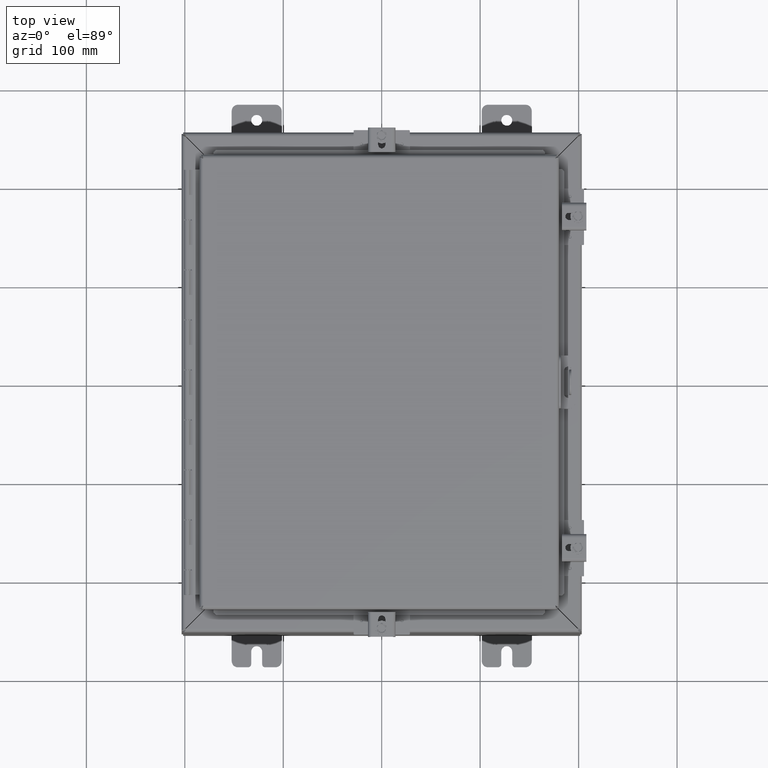
[diagram: clean part render]
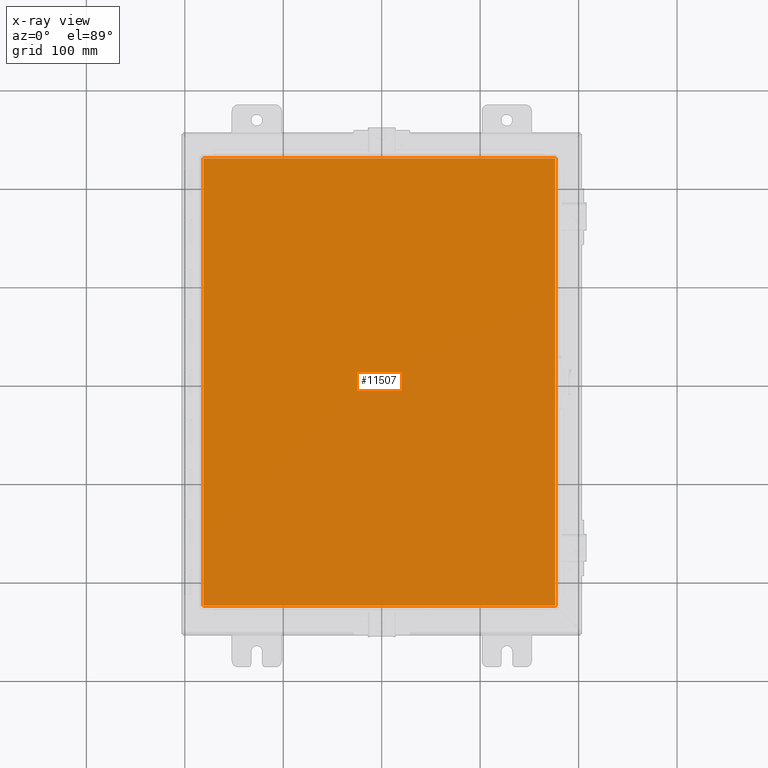
[diagram: x-ray — body ghosted, one internal face saturated and labeled with its STEP entity id]
A machine part, top view, then the same camera in x-ray: the body is ghosted and one INTERNAL B-rep face — a face not visible from any outside direction — is saturated and labeled: STEP entity #11507.
In plain terms, the highlighted planar face has unit normal (-0, -0, -1).
Its self-contained STEP definition (entity closure, byte-faithful):
#1282=PLANE('',#12228);
#1803=FACE_OUTER_BOUND('',#2477,.T.);
#2477=EDGE_LOOP('',(#9403,#9404,#9405,#9406));
#3302=LINE('',#19282,#4307);
#3308=LINE('',#19412,#4313);
#3312=LINE('',#19509,#4317);
#3326=LINE('',#19743,#4331);
#4307=VECTOR('',#14060,14.0695);
#4313=VECTOR('',#14070,17.882);
#4317=VECTOR('',#14082,14.0695);
#4331=VECTOR('',#14118,17.882);
#5637=VERTEX_POINT('',#19268);
#5638=VERTEX_POINT('',#19274);
#5644=VERTEX_POINT('',#19411);
#5648=VERTEX_POINT('',#19508);
#6966=EDGE_CURVE('',#5637,#5638,#3302,.T.);
#6980=EDGE_CURVE('',#5644,#5637,#3308,.T.);
#6991=EDGE_CURVE('',#5648,#5644,#3312,.T.);
#7014=EDGE_CURVE('',#5638,#5648,#3326,.T.);
#9403=ORIENTED_EDGE('',*,*,#6980,.T.);
#9404=ORIENTED_EDGE('',*,*,#6966,.T.);
#9405=ORIENTED_EDGE('',*,*,#7014,.T.);
#9406=ORIENTED_EDGE('',*,*,#6991,.T.);
#11507=ADVANCED_FACE('',(#1803),#1282,.T.);
#12228=AXIS2_PLACEMENT_3D('',#19766,#14122,#14123);
#14060=DIRECTION('',(1.,0.,0.));
#14070=DIRECTION('',(1.5643733058451E-16,-1.,0.));
#14082=DIRECTION('',(-1.,0.,0.));
#14118=DIRECTION('',(0.,1.,0.));
#14122=DIRECTION('center_axis',(0.,0.,1.));
#14123=DIRECTION('ref_axis',(1.,0.,0.));
#19268=CARTESIAN_POINT('',(-7.03475,-8.941,0.059));
#19274=CARTESIAN_POINT('',(7.03475,-8.941,0.059));
#19282=CARTESIAN_POINT('',(3.517375,-8.941,0.059));
#19411=CARTESIAN_POINT('',(-7.03475,8.941,0.059));
#19412=CARTESIAN_POINT('',(-7.03475,-4.4705,0.059));
#19508=CARTESIAN_POINT('',(7.03475,8.941,0.059));
#19509=CARTESIAN_POINT('',(-3.59375,8.941,0.059));
#19743=CARTESIAN_POINT('',(7.03475,4.4705,0.059));
#19766=CARTESIAN_POINT('Origin',(-3.49676543189026E-16,1.96144683892822E-15,
0.059));